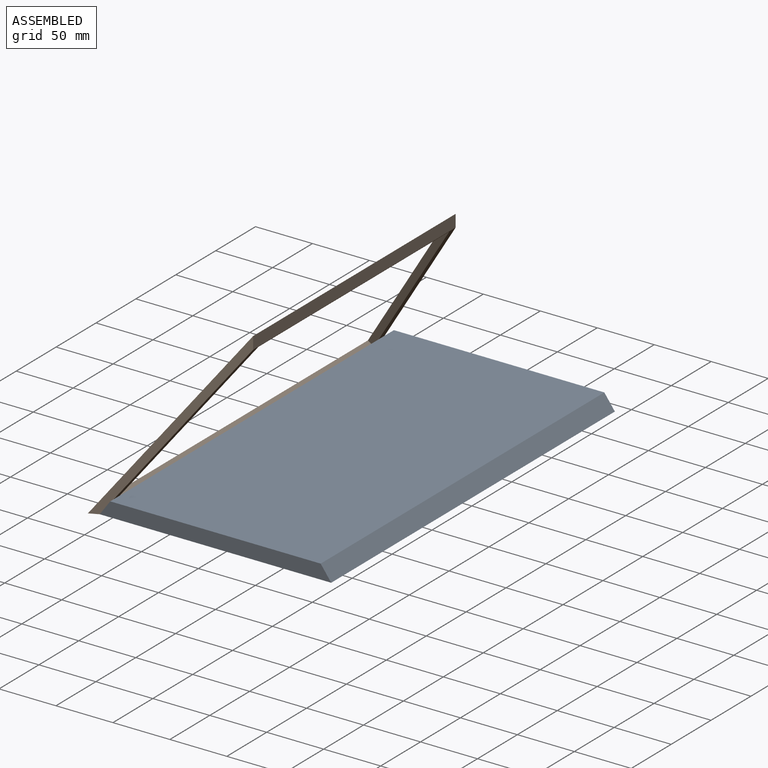
[diagram: assembled view]
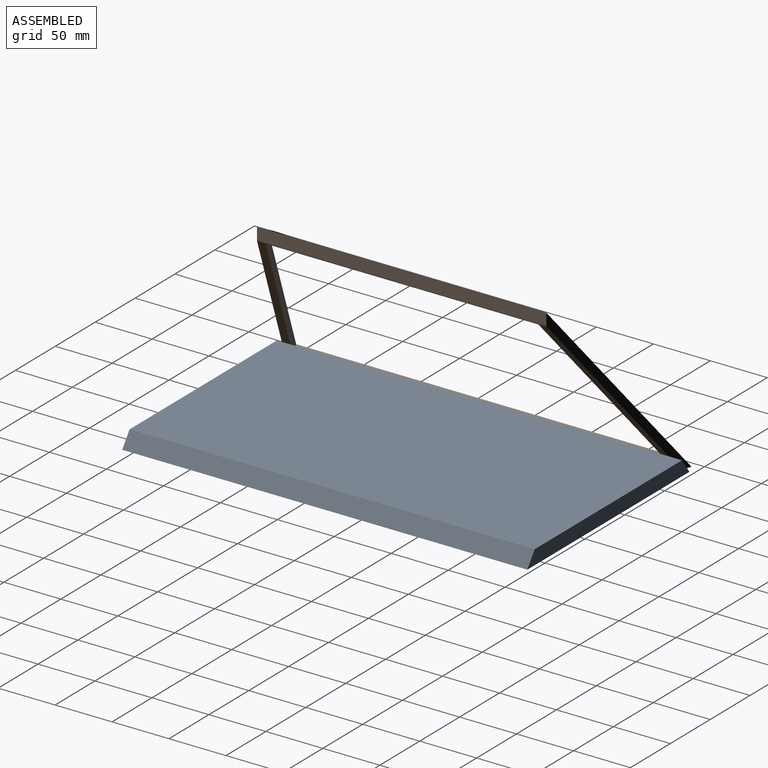
[diagram: assembled view, second angle]
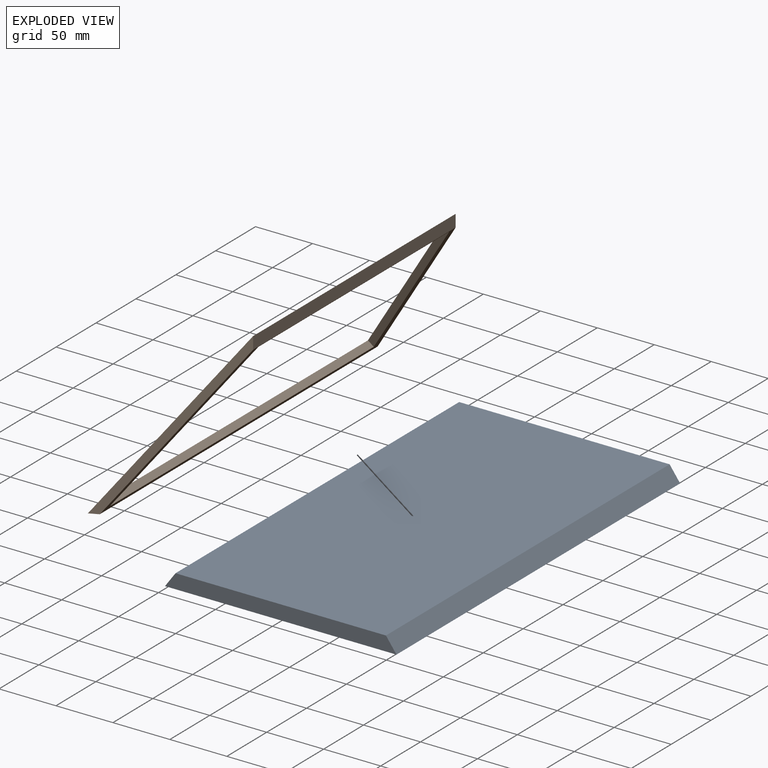
[diagram: exploded view]
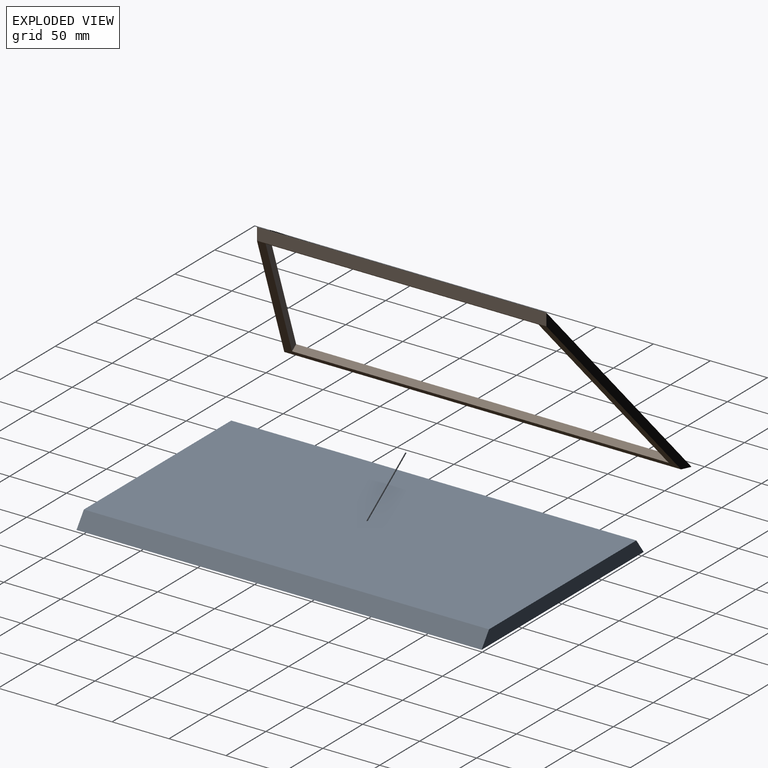
[diagram: exploded view, second angle]
ASSEMBLY  parts=2 mates=2
PART A: 6 faces, bbox 203.2x355.6x12.7 mm
  f0: plane 203.2x12.7mm, normal (0,-1,0), area 2463.3mm2, adj f1,f3,f4,f5
  f1: plane 355.6x184.73mm, normal (0,0,1), area 65689mm2, adj f0,f2,f4,f5
  f2: plane 203.2x12.7mm, normal (0,1,0), area 2463.3mm2, adj f1,f3,f4,f5
  f3: plane 355.6x203.2mm, normal (0,0,-1), area 72257.9mm2, adj f0,f2,f4,f5
  f4: plane 355.6x12.7mm, normal (0.81,0,0.59), area 5584.2mm2, adj f0,f1,f2,f3
  f5: plane 355.6x12.7mm, normal (-0.81,0,0.59), area 5584.2mm2, adj f0,f1,f2,f3
PART B: 10 faces, bbox 109.5x355.6x150.5 mm
  f0: plane 355.6x7.85mm, normal (0,0,-1), area 2763.5mm2, adj f2,f3,f4,f5
  f1: plane 254x10.8mm, normal (1,0,0), area 2742.2mm2, adj f2,f3,f4,f5
  f2: plane 355.6x150.5mm, normal (-0.81,0,0.59), area 9105mm2, adj f0,f1,f4,f5,f6,f7,f8,f9
  f3: plane 348.31x139.7mm, normal (0.81,0,-0.59), area 4406.5mm2, adj f0,f1,f4,f5,f6,f7,f8,f9
  f4: plane 150.5x109.45mm, normal (0.42,0.91,0), area 1256mm2, adj f0,f1,f2,f3
  f5: plane 150.5x109.45mm, normal (0.42,-0.91,0), area 1256mm2, adj f0,f1,f2,f3
  f6: plane 330.65x5.14mm, normal (0.59,0,0.81), area 2099.6mm2, adj f2,f3,f7,f9
  f7: plane 138.82x103.38mm, normal (-0.15,0.96,-0.21), area 1099.5mm2, adj f2,f3,f6,f8
  f8: plane 239.45x5.14mm, normal (-0.59,0,-0.81), area 1520.5mm2, adj f2,f3,f7,f9
  f9: plane 138.82x103.38mm, normal (-0.15,-0.96,-0.21), area 1099.5mm2, adj f2,f3,f6,f8
PLACE A t=(9.21,177.8,-12.7)mm
PLACE B t=(0,-3.64,-12.7)mm
MATE fastened B.f0 <-> A.f3  axis (0,0,1) through (-101.6,0,-12.7)mm
MATE planar B.f3 <-> A.f5  axis (0.81,0,-0.59) through (-98.71,8.83,-8.73)mm
